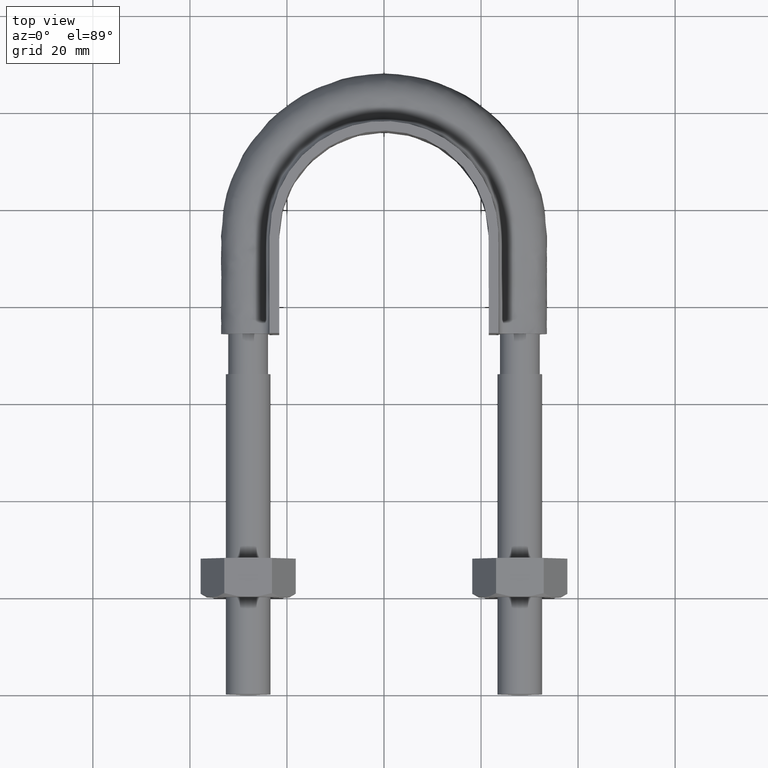
[diagram: clean part render]
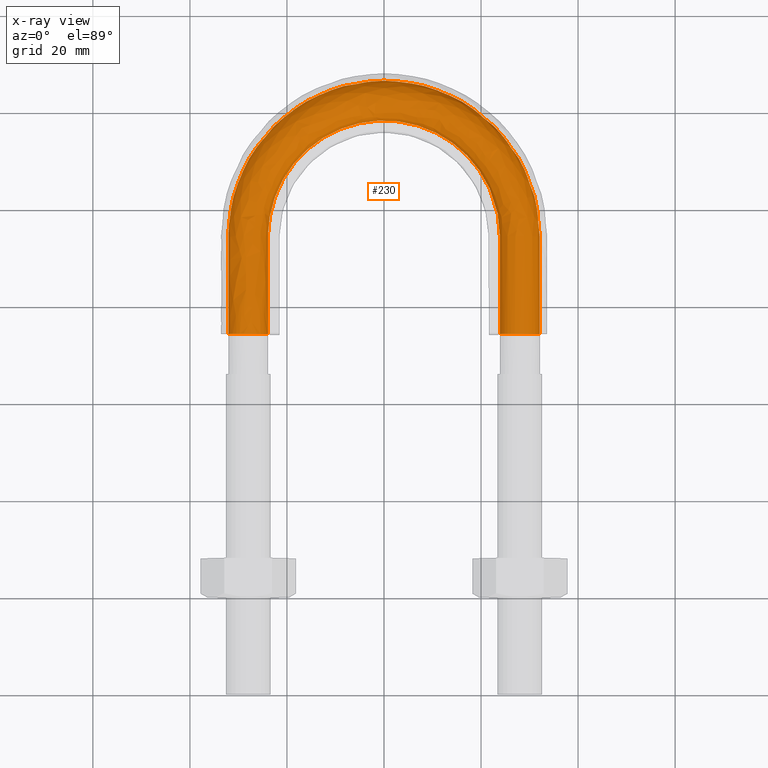
[diagram: x-ray — body ghosted, one internal face saturated and labeled with its STEP entity id]
A machine part, top view, then the same camera in x-ray: the body is ghosted and one INTERNAL B-rep face — a face not visible from any outside direction — is saturated and labeled: STEP entity #230.
In plain terms, the highlighted face is a freeform B-spline surface patch.
Its self-contained STEP definition (entity closure, byte-faithful):
#230 = ADVANCED_FACE( '', ( #322, #323 ), #324, .T. );
#322 = FACE_OUTER_BOUND( '', #1170, .T. );
#323 = FACE_OUTER_BOUND( '', #1171, .T. );
#324 = B_SPLINE_SURFACE_WITH_KNOTS( '', 3, 3, ( ( #1172, #1173, #1174, #1175, #1176, #1177, #1178, #1179, #1180, #1181, #1182, #1183, #1184, #1185, #1186 ), ( #1187, #1188, #1189, #1190, #1191, #1192, #1193, #1194, #1195, #1196, #1197, #1198, #1199, #1200, #1201 ), ( #1202, #1203, #1204, #1205, #1206, #1207, #1208, #1209, #1210, #1211, #1212, #1213, #1214, #1215, #1216 ), ( #1217, #1218, #1219, #1220, #1221, #1222, #1223, #1224, #1225, #1226, #1227, #1228, #1229, #1230, #1231 ), ( #1232, #1233, #1234, #1235, #1236, #1237, #1238, #1239, #1240, #1241, #1242, #1243, #1244, #1245, #1246 ), ( #1247, #1248, #1249, #1250, #1251, #1252, #1253, #1254, #1255, #1256, #1257, #1258, #1259, #1260, #1261 ), ( #1262, #1263, #1264, #1265, #1266, #1267, #1268, #1269, #1270, #1271, #1272, #1273, #1274, #1275, #1276 ), ( #1277, #1278, #1279, #1280, #1281, #1282, #1283, #1284, #1285, #1286, #1287, #1288, #1289, #1290, #1291 ), ( #1292, #1293, #1294, #1295, #1296, #1297, #1298, #1299, #1300, #1301, #1302, #1303, #1304, #1305, #1306 ), ( #1307, #1308, #1309, #1310, #1311, #1312, #1313, #1314, #1315, #1316, #1317, #1318, #1319, #1320, #1321 ) ), .UNSPECIFIED., .T., .F., .F., ( 2, 1, 1, 1, 1, 1, 1, 1, 1, 1, 1, 2 ), ( 4, 3, 1, 1, 1, 1, 1, 3, 4 ), ( -0.285714285714286, -0.142857142857143, 0.000000000000000, 0.142857142857143, 0.285714285714286, 0.428571428571429, 0.571428571428571, 0.714285714285714, 0.857142857142857, 1.00000000000000, 1.14285714285714, 1.28571428571429 ), ( 0.000000000000000, 1.00000000000000, 2.00000000000000, 3.00000000000000, 4.00000000000000, 5.00000000000000, 6.00000000000000, 7.00000000000000, 8.00000000000000 ), .UNSPECIFIED. );
#1170 = EDGE_LOOP( '', ( #1548, #1549, #1550, #1551, #1552, #1553, #1554 ) );
#1171 = EDGE_LOOP( '', ( #1555, #1556, #1557, #1558, #1559, #1560, #1561 ) );
#1172 = CARTESIAN_POINT( '', ( 25.0768231851220, 71.3000000000000, -3.66554778583225 ) );
#1173 = CARTESIAN_POINT( '', ( 25.0768231851220, 79.0000000000000, -3.66554778583225 ) );
#1174 = CARTESIAN_POINT( '', ( 25.0768231851220, 86.7000000000000, -3.66554778583225 ) );
#1175 = CARTESIAN_POINT( '', ( 25.0768231851220, 94.4000000000000, -3.66554778583225 ) );
#1176 = CARTESIAN_POINT( '', ( 25.0768231851220, 98.7626384006497, -3.66554778583225 ) );
#1177 = CARTESIAN_POINT( '', ( 22.7323518094255, 107.530224984080, -3.66554778583225 ) );
#1178 = CARTESIAN_POINT( '', ( 13.1245294364851, 117.130724510113, -3.66554778583225 ) );
#1179 = CARTESIAN_POINT( '', ( 2.47495200347735E-014, 120.649872522627, -3.66554778583225 ) );
#1180 = CARTESIAN_POINT( '', ( -13.1245294364851, 117.130724510113, -3.66554778583225 ) );
#1181 = CARTESIAN_POINT( '', ( -22.7323518094255, 107.530224984080, -3.66554778583225 ) );
#1182 = CARTESIAN_POINT( '', ( -25.0768231851219, 98.7626384006496, -3.66554778583225 ) );
#1183 = CARTESIAN_POINT( '', ( -25.0768231851219, 94.4000000000000, -3.66554778583225 ) );
#1184 = CARTESIAN_POINT( '', ( -25.0768231851219, 86.7000000000000, -3.66554778583225 ) );
#1185 = CARTESIAN_POINT( '', ( -25.0768231851219, 79.0000000000000, -3.66554778583225 ) );
#1186 = CARTESIAN_POINT( '', ( -25.0768231851219, 71.3000000000000, -3.66554778583225 ) );
#1187 = CARTESIAN_POINT( '', ( 23.3115884074390, 71.3000000000000, 0.000000000000000 ) );
#1188 = CARTESIAN_POINT( '', ( 23.3115884074390, 79.0000000000000, 0.000000000000000 ) );
#1189 = CARTESIAN_POINT( '', ( 23.3115884074390, 86.7000000000000, 0.000000000000000 ) );
#1190 = CARTESIAN_POINT( '', ( 23.3115884074390, 94.4000000000000, 0.000000000000000 ) );
#1191 = CARTESIAN_POINT( '', ( 23.3115884074390, 98.4473095785620, 0.000000000000000 ) );
#1192 = CARTESIAN_POINT( '', ( 21.1321515888358, 106.609788357455, 0.000000000000000 ) );
#1193 = CARTESIAN_POINT( '', ( 12.2006534083703, 115.529541603383, 0.000000000000000 ) );
#1194 = CARTESIAN_POINT( '', ( 2.97274737420537E-014, 118.802611809467, 0.000000000000000 ) );
#1195 = CARTESIAN_POINT( '', ( -12.2006534083703, 115.529541603383, 0.000000000000000 ) );
#1196 = CARTESIAN_POINT( '', ( -21.1321515888358, 106.609788357455, 0.000000000000000 ) );
#1197 = CARTESIAN_POINT( '', ( -23.3115884074390, 98.4473095785620, 0.000000000000000 ) );
#1198 = CARTESIAN_POINT( '', ( -23.3115884074390, 94.4000000000000, 0.000000000000000 ) );
#1199 = CARTESIAN_POINT( '', ( -23.3115884074390, 86.7000000000000, 0.000000000000000 ) );
#1200 = CARTESIAN_POINT( '', ( -23.3115884074390, 79.0000000000000, 0.000000000000000 ) );
#1201 = CARTESIAN_POINT( '', ( -23.3115884074390, 71.3000000000000, 0.000000000000000 ) );
#1202 = CARTESIAN_POINT( '', ( 25.0768231851220, 71.3000000000000, 3.66554778583225 ) );
#1203 = CARTESIAN_POINT( '', ( 25.0768231851220, 79.0000000000000, 3.66554778583225 ) );
#1204 = CARTESIAN_POINT( '', ( 25.0768231851220, 86.7000000000000, 3.66554778583225 ) );
#1205 = CARTESIAN_POINT( '', ( 25.0768231851220, 94.4000000000000, 3.66554778583225 ) );
#1206 = CARTESIAN_POINT( '', ( 25.0768231851220, 98.7626384006496, 3.66554778583225 ) );
#1207 = CARTESIAN_POINT( '', ( 22.7323518094255, 107.530224984080, 3.66554778583225 ) );
#1208 = CARTESIAN_POINT( '', ( 13.1245294364851, 117.130724510113, 3.66554778583225 ) );
#1209 = CARTESIAN_POINT( '', ( 3.21220948076749E-014, 120.649872522627, 3.66554778583225 ) );
#1210 = CARTESIAN_POINT( '', ( -13.1245294364851, 117.130724510113, 3.66554778583225 ) );
#1211 = CARTESIAN_POINT( '', ( -22.7323518094255, 107.530224984080, 3.66554778583225 ) );
#1212 = CARTESIAN_POINT( '', ( -25.0768231851219, 98.7626384006497, 3.66554778583225 ) );
#1213 = CARTESIAN_POINT( '', ( -25.0768231851219, 94.4000000000000, 3.66554778583225 ) );
#1214 = CARTESIAN_POINT( '', ( -25.0768231851219, 86.7000000000000, 3.66554778583225 ) );
#1215 = CARTESIAN_POINT( '', ( -25.0768231851219, 79.0000000000000, 3.66554778583225 ) );
#1216 = CARTESIAN_POINT( '', ( -25.0768231851219, 71.3000000000000, 3.66554778583225 ) );
#1217 = CARTESIAN_POINT( '', ( 29.0432697263483, 71.3000000000000, 4.57086332538454 ) );
#1218 = CARTESIAN_POINT( '', ( 29.0432697263483, 79.0000000000000, 4.57086332538454 ) );
#1219 = CARTESIAN_POINT( '', ( 29.0432697263483, 86.7000000000000, 4.57086332538454 ) );
#1220 = CARTESIAN_POINT( '', ( 29.0432697263483, 94.4000000000000, 4.57086332538454 ) );
#1221 = CARTESIAN_POINT( '', ( 29.0432697263483, 99.4711758323449, 4.57086332538453 ) );
#1222 = CARTESIAN_POINT( '', ( 26.3279690669548, 109.598427310621, 4.57086332538453 ) );
#1223 = CARTESIAN_POINT( '', ( 15.2004600280225, 120.728549843355, 4.57086332538454 ) );
#1224 = CARTESIAN_POINT( '', ( 2.91609522130421E-014, 124.800629667845, 4.57086332538454 ) );
#1225 = CARTESIAN_POINT( '', ( -15.2004600280225, 120.728549843355, 4.57086332538454 ) );
#1226 = CARTESIAN_POINT( '', ( -26.3279690669548, 109.598427310621, 4.57086332538453 ) );
#1227 = CARTESIAN_POINT( '', ( -29.0432697263483, 99.4711758323449, 4.57086332538454 ) );
#1228 = CARTESIAN_POINT( '', ( -29.0432697263483, 94.4000000000000, 4.57086332538454 ) );
#1229 = CARTESIAN_POINT( '', ( -29.0432697263483, 86.7000000000000, 4.57086332538454 ) );
#1230 = CARTESIAN_POINT( '', ( -29.0432697263483, 79.0000000000000, 4.57086332538454 ) );
#1231 = CARTESIAN_POINT( '', ( -29.0432697263483, 71.3000000000000, 4.57086332538454 ) );
#1232 = CARTESIAN_POINT( '', ( 32.2241128848103, 71.3000000000000, 2.03422555230246 ) );
#1233 = CARTESIAN_POINT( '', ( 32.2241128848103, 79.0000000000000, 2.03422555230246 ) );
#1234 = CARTESIAN_POINT( '', ( 32.2241128848103, 86.7000000000000, 2.03422555230246 ) );
#1235 = CARTESIAN_POINT( '', ( 32.2241128848103, 94.4000000000000, 2.03422555230246 ) );
#1236 = CARTESIAN_POINT( '', ( 32.2241128848103, 100.039378736051, 2.03422555230246 ) );
#1237 = CARTESIAN_POINT( '', ( 29.2114302292787, 111.256996801553, 2.03422555230246 ) );
#1238 = CARTESIAN_POINT( '', ( 16.8652271062880, 123.613781744917, 2.03422555230246 ) );
#1239 = CARTESIAN_POINT( '', ( 2.26296867545444E-014, 128.129278454757, 2.03422555230246 ) );
#1240 = CARTESIAN_POINT( '', ( -16.8652271062880, 123.613781744917, 2.03422555230247 ) );
#1241 = CARTESIAN_POINT( '', ( -29.2114302292786, 111.256996801553, 2.03422555230246 ) );
#1242 = CARTESIAN_POINT( '', ( -32.2241128848102, 100.039378736052, 2.03422555230246 ) );
#1243 = CARTESIAN_POINT( '', ( -32.2241128848102, 94.4000000000000, 2.03422555230246 ) );
#1244 = CARTESIAN_POINT( '', ( -32.2241128848102, 86.7000000000000, 2.03422555230246 ) );
#1245 = CARTESIAN_POINT( '', ( -32.2241128848102, 79.0000000000000, 2.03422555230246 ) );
#1246 = CARTESIAN_POINT( '', ( -32.2241128848102, 71.3000000000000, 2.03422555230246 ) );
#1247 = CARTESIAN_POINT( '', ( 32.2241128848103, 71.3000000000000, -2.03422555230246 ) );
#1248 = CARTESIAN_POINT( '', ( 32.2241128848103, 79.0000000000000, -2.03422555230246 ) );
#1249 = CARTESIAN_POINT( '', ( 32.2241128848103, 86.7000000000000, -2.03422555230246 ) );
#1250 = CARTESIAN_POINT( '', ( 32.2241128848103, 94.4000000000000, -2.03422555230246 ) );
#1251 = CARTESIAN_POINT( '', ( 32.2241128848103, 100.039378736051, -2.03422555230246 ) );
#1252 = CARTESIAN_POINT( '', ( 29.2114302292787, 111.256996801553, -2.03422555230246 ) );
#1253 = CARTESIAN_POINT( '', ( 16.8652271062880, 123.613781744917, -2.03422555230246 ) );
#1254 = CARTESIAN_POINT( '', ( 1.82928780646024E-014, 128.129278454757, -2.03422555230246 ) );
#1255 = CARTESIAN_POINT( '', ( -16.8652271062880, 123.613781744917, -2.03422555230246 ) );
#1256 = CARTESIAN_POINT( '', ( -29.2114302292787, 111.256996801553, -2.03422555230246 ) );
#1257 = CARTESIAN_POINT( '', ( -32.2241128848102, 100.039378736051, -2.03422555230246 ) );
#1258 = CARTESIAN_POINT( '', ( -32.2241128848102, 94.4000000000000, -2.03422555230246 ) );
#1259 = CARTESIAN_POINT( '', ( -32.2241128848102, 86.7000000000000, -2.03422555230246 ) );
#1260 = CARTESIAN_POINT( '', ( -32.2241128848102, 79.0000000000000, -2.03422555230246 ) );
#1261 = CARTESIAN_POINT( '', ( -32.2241128848102, 71.3000000000000, -2.03422555230246 ) );
#1262 = CARTESIAN_POINT( '', ( 29.0432697263483, 71.3000000000000, -4.57086332538454 ) );
#1263 = CARTESIAN_POINT( '', ( 29.0432697263483, 79.0000000000000, -4.57086332538454 ) );
#1264 = CARTESIAN_POINT( '', ( 29.0432697263483, 86.7000000000000, -4.57086332538454 ) );
#1265 = CARTESIAN_POINT( '', ( 29.0432697263483, 94.4000000000000, -4.57086332538454 ) );
#1266 = CARTESIAN_POINT( '', ( 29.0432697263483, 99.4711758323449, -4.57086332538454 ) );
#1267 = CARTESIAN_POINT( '', ( 26.3279690669548, 109.598427310621, -4.57086332538454 ) );
#1268 = CARTESIAN_POINT( '', ( 15.2004600280225, 120.728549843355, -4.57086332538454 ) );
#1269 = CARTESIAN_POINT( '', ( 1.87526113571812E-014, 124.800629667845, -4.57086332538454 ) );
#1270 = CARTESIAN_POINT( '', ( -15.2004600280225, 120.728549843355, -4.57086332538454 ) );
#1271 = CARTESIAN_POINT( '', ( -26.3279690669548, 109.598427310621, -4.57086332538454 ) );
#1272 = CARTESIAN_POINT( '', ( -29.0432697263483, 99.4711758323449, -4.57086332538454 ) );
#1273 = CARTESIAN_POINT( '', ( -29.0432697263483, 94.4000000000000, -4.57086332538454 ) );
#1274 = CARTESIAN_POINT( '', ( -29.0432697263483, 86.7000000000000, -4.57086332538454 ) );
#1275 = CARTESIAN_POINT( '', ( -29.0432697263483, 79.0000000000000, -4.57086332538454 ) );
#1276 = CARTESIAN_POINT( '', ( -29.0432697263483, 71.3000000000000, -4.57086332538454 ) );
#1277 = CARTESIAN_POINT( '', ( 25.0768231851220, 71.3000000000000, -3.66554778583225 ) );
#1278 = CARTESIAN_POINT( '', ( 25.0768231851220, 79.0000000000000, -3.66554778583225 ) );
#1279 = CARTESIAN_POINT( '', ( 25.0768231851220, 86.7000000000000, -3.66554778583225 ) );
#1280 = CARTESIAN_POINT( '', ( 25.0768231851220, 94.4000000000000, -3.66554778583225 ) );
#1281 = CARTESIAN_POINT( '', ( 25.0768231851220, 98.7626384006497, -3.66554778583225 ) );
#1282 = CARTESIAN_POINT( '', ( 22.7323518094255, 107.530224984080, -3.66554778583225 ) );
#1283 = CARTESIAN_POINT( '', ( 13.1245294364851, 117.130724510113, -3.66554778583225 ) );
#1284 = CARTESIAN_POINT( '', ( 2.47495200347735E-014, 120.649872522627, -3.66554778583225 ) );
#1285 = CARTESIAN_POINT( '', ( -13.1245294364851, 117.130724510113, -3.66554778583225 ) );
#1286 = CARTESIAN_POINT( '', ( -22.7323518094255, 107.530224984080, -3.66554778583225 ) );
#1287 = CARTESIAN_POINT( '', ( -25.0768231851219, 98.7626384006496, -3.66554778583225 ) );
#1288 = CARTESIAN_POINT( '', ( -25.0768231851219, 94.4000000000000, -3.66554778583225 ) );
#1289 = CARTESIAN_POINT( '', ( -25.0768231851219, 86.7000000000000, -3.66554778583225 ) );
#1290 = CARTESIAN_POINT( '', ( -25.0768231851219, 79.0000000000000, -3.66554778583225 ) );
#1291 = CARTESIAN_POINT( '', ( -25.0768231851219, 71.3000000000000, -3.66554778583225 ) );
#1292 = CARTESIAN_POINT( '', ( 23.3115884074390, 71.3000000000000, 0.000000000000000 ) );
#1293 = CARTESIAN_POINT( '', ( 23.3115884074390, 79.0000000000000, 0.000000000000000 ) );
#1294 = CARTESIAN_POINT( '', ( 23.3115884074390, 86.7000000000000, 0.000000000000000 ) );
#1295 = CARTESIAN_POINT( '', ( 23.3115884074390, 94.4000000000000, 0.000000000000000 ) );
#1296 = CARTESIAN_POINT( '', ( 23.3115884074390, 98.4473095785620, 0.000000000000000 ) );
#1297 = CARTESIAN_POINT( '', ( 21.1321515888358, 106.609788357455, 0.000000000000000 ) );
#1298 = CARTESIAN_POINT( '', ( 12.2006534083703, 115.529541603383, 0.000000000000000 ) );
#1299 = CARTESIAN_POINT( '', ( 2.97274737420537E-014, 118.802611809467, 0.000000000000000 ) );
#1300 = CARTESIAN_POINT( '', ( -12.2006534083703, 115.529541603383, 0.000000000000000 ) );
#1301 = CARTESIAN_POINT( '', ( -21.1321515888358, 106.609788357455, 0.000000000000000 ) );
#1302 = CARTESIAN_POINT( '', ( -23.3115884074390, 98.4473095785620, 0.000000000000000 ) );
#1303 = CARTESIAN_POINT( '', ( -23.3115884074390, 94.4000000000000, 0.000000000000000 ) );
#1304 = CARTESIAN_POINT( '', ( -23.3115884074390, 86.7000000000000, 0.000000000000000 ) );
#1305 = CARTESIAN_POINT( '', ( -23.3115884074390, 79.0000000000000, 0.000000000000000 ) );
#1306 = CARTESIAN_POINT( '', ( -23.3115884074390, 71.3000000000000, 0.000000000000000 ) );
#1307 = CARTESIAN_POINT( '', ( 25.0768231851220, 71.3000000000000, 3.66554778583225 ) );
#1308 = CARTESIAN_POINT( '', ( 25.0768231851220, 79.0000000000000, 3.66554778583225 ) );
#1309 = CARTESIAN_POINT( '', ( 25.0768231851220, 86.7000000000000, 3.66554778583225 ) );
#1310 = CARTESIAN_POINT( '', ( 25.0768231851220, 94.4000000000000, 3.66554778583225 ) );
#1311 = CARTESIAN_POINT( '', ( 25.0768231851220, 98.7626384006496, 3.66554778583225 ) );
#1312 = CARTESIAN_POINT( '', ( 22.7323518094255, 107.530224984080, 3.66554778583225 ) );
#1313 = CARTESIAN_POINT( '', ( 13.1245294364851, 117.130724510113, 3.66554778583225 ) );
#1314 = CARTESIAN_POINT( '', ( 3.21220948076749E-014, 120.649872522627, 3.66554778583225 ) );
#1315 = CARTESIAN_POINT( '', ( -13.1245294364851, 117.130724510113, 3.66554778583225 ) );
#1316 = CARTESIAN_POINT( '', ( -22.7323518094255, 107.530224984080, 3.66554778583225 ) );
#1317 = CARTESIAN_POINT( '', ( -25.0768231851219, 98.7626384006497, 3.66554778583225 ) );
#1318 = CARTESIAN_POINT( '', ( -25.0768231851219, 94.4000000000000, 3.66554778583225 ) );
#1319 = CARTESIAN_POINT( '', ( -25.0768231851219, 86.7000000000000, 3.66554778583225 ) );
#1320 = CARTESIAN_POINT( '', ( -25.0768231851219, 79.0000000000000, 3.66554778583225 ) );
#1321 = CARTESIAN_POINT( '', ( -25.0768231851219, 71.3000000000000, 3.66554778583225 ) );
#1548 = ORIENTED_EDGE( '', *, *, #2027, .T. );
#1549 = ORIENTED_EDGE( '', *, *, #2026, .T. );
#1550 = ORIENTED_EDGE( '', *, *, #2028, .T. );
#1551 = ORIENTED_EDGE( '', *, *, #2029, .T. );
#1552 = ORIENTED_EDGE( '', *, *, #2030, .T. );
#1553 = ORIENTED_EDGE( '', *, *, #2031, .T. );
#1554 = ORIENTED_EDGE( '', *, *, #2032, .T. );
#1555 = ORIENTED_EDGE( '', *, *, #2033, .T. );
#1556 = ORIENTED_EDGE( '', *, *, #2034, .F. );
#1557 = ORIENTED_EDGE( '', *, *, #2035, .F. );
#1558 = ORIENTED_EDGE( '', *, *, #2036, .F. );
#1559 = ORIENTED_EDGE( '', *, *, #2037, .F. );
#1560 = ORIENTED_EDGE( '', *, *, #2038, .F. );
#1561 = ORIENTED_EDGE( '', *, *, #2039, .F. );
#2026 = EDGE_CURVE( '', #2190, #2188, #2197, .T. );
#2027 = EDGE_CURVE( '', #2179, #2190, #2198, .T. );
#2028 = EDGE_CURVE( '', #2188, #2186, #2199, .T. );
#2029 = EDGE_CURVE( '', #2186, #2184, #2200, .T. );
#2030 = EDGE_CURVE( '', #2184, #2182, #2201, .T. );
#2031 = EDGE_CURVE( '', #2182, #2180, #2202, .T. );
#2032 = EDGE_CURVE( '', #2180, #2179, #2203, .T. );
#2033 = EDGE_CURVE( '', #2204, #2205, #2206, .T. );
#2034 = EDGE_CURVE( '', #2207, #2205, #2208, .T. );
#2035 = EDGE_CURVE( '', #2209, #2207, #2210, .T. );
#2036 = EDGE_CURVE( '', #2211, #2209, #2212, .T. );
#2037 = EDGE_CURVE( '', #2213, #2211, #2214, .T. );
#2038 = EDGE_CURVE( '', #2215, #2213, #2216, .T. );
#2039 = EDGE_CURVE( '', #2204, #2215, #2217, .T. );
#2179 = VERTEX_POINT( '', #2630 );
#2180 = VERTEX_POINT( '', #2631 );
#2182 = VERTEX_POINT( '', #2633 );
#2184 = VERTEX_POINT( '', #2635 );
#2186 = VERTEX_POINT( '', #2637 );
#2188 = VERTEX_POINT( '', #2639 );
#2190 = VERTEX_POINT( '', #2641 );
#2197 = B_SPLINE_CURVE_WITH_KNOTS( '', 3, ( #2648, #2649, #2650, #2651 ), .UNSPECIFIED., .F., .F., ( 4, 4 ), ( 0.00365969768494560, 0.00731437302338649 ), .UNSPECIFIED. );
#2198 = B_SPLINE_CURVE_WITH_KNOTS( '', 3, ( #2652, #2653, #2654, #2655 ), .UNSPECIFIED., .F., .F., ( 4, 4 ), ( 5.20417042793042E-017, 0.00365969768494560 ), .UNSPECIFIED. );
#2199 = B_SPLINE_CURVE_WITH_KNOTS( '', 3, ( #2656, #2657, #2658, #2659 ), .UNSPECIFIED., .F., .F., ( 4, 4 ), ( 0.00731437302338649, 0.0109748044148549 ), .UNSPECIFIED. );
#2200 = B_SPLINE_CURVE_WITH_KNOTS( '', 3, ( #2660, #2661, #2662, #2663 ), .UNSPECIFIED., .F., .F., ( 4, 4 ), ( 0.0109748044148549, 0.0146317467085366 ), .UNSPECIFIED. );
#2201 = B_SPLINE_CURVE_WITH_KNOTS( '', 3, ( #2664, #2665, #2666, #2667 ), .UNSPECIFIED., .F., .F., ( 4, 4 ), ( 0.0146317467085366, 0.0182856759681277 ), .UNSPECIFIED. );
#2202 = B_SPLINE_CURVE_WITH_KNOTS( '', 3, ( #2668, #2669, #2670, #2671 ), .UNSPECIFIED., .F., .F., ( 4, 4 ), ( 0.0182856759681277, 0.0219456464543594 ), .UNSPECIFIED. );
#2203 = B_SPLINE_CURVE_WITH_KNOTS( '', 3, ( #2672, #2673, #2674, #2675 ), .UNSPECIFIED., .F., .F., ( 4, 4 ), ( 0.0219456464543594, 0.0255944202292314 ), .UNSPECIFIED. );
#2204 = VERTEX_POINT( '', #2676 );
#2205 = VERTEX_POINT( '', #2677 );
#2206 = B_SPLINE_CURVE_WITH_KNOTS( '', 3, ( #2678, #2679, #2680, #2681 ), .UNSPECIFIED., .F., .F., ( 4, 4 ), ( 2.76869048186654E-017, 0.00365969768494564 ), .UNSPECIFIED. );
#2207 = VERTEX_POINT( '', #2682 );
#2208 = B_SPLINE_CURVE_WITH_KNOTS( '', 3, ( #2683, #2684, #2685, #2686 ), .UNSPECIFIED., .F., .F., ( 4, 4 ), ( -0.285714285714286, -0.142857142857143 ), .UNSPECIFIED. );
#2209 = VERTEX_POINT( '', #2687 );
#2210 = B_SPLINE_CURVE_WITH_KNOTS( '', 3, ( #2688, #2689, #2690, #2691 ), .UNSPECIFIED., .F., .F., ( 4, 4 ), ( -0.428571428571429, -0.285714285714286 ), .UNSPECIFIED. );
#2211 = VERTEX_POINT( '', #2692 );
#2212 = B_SPLINE_CURVE_WITH_KNOTS( '', 3, ( #2693, #2694, #2695, #2696 ), .UNSPECIFIED., .F., .F., ( 4, 4 ), ( -0.571428571428571, -0.428571428571429 ), .UNSPECIFIED. );
#2213 = VERTEX_POINT( '', #2697 );
#2214 = B_SPLINE_CURVE_WITH_KNOTS( '', 3, ( #2698, #2699, #2700, #2701 ), .UNSPECIFIED., .F., .F., ( 4, 4 ), ( -0.714285714285714, -0.571428571428571 ), .UNSPECIFIED. );
#2215 = VERTEX_POINT( '', #2702 );
#2216 = B_SPLINE_CURVE_WITH_KNOTS( '', 3, ( #2703, #2704, #2705, #2706 ), .UNSPECIFIED., .F., .F., ( 4, 4 ), ( -0.857142857142857, -0.714285714285714 ), .UNSPECIFIED. );
#2217 = B_SPLINE_CURVE_WITH_KNOTS( '', 3, ( #2707, #2708, #2709, #2710 ), .UNSPECIFIED., .F., .F., ( 4, 4 ), ( -1.00000000000000, -0.857142857142857 ), .UNSPECIFIED. );
#2630 = CARTESIAN_POINT( '', ( -23.9000000000000, 74.3000000000000, 5.34345494379736E-014 ) );
#2631 = CARTESIAN_POINT( '', ( -25.4436918124004, 74.3000000000000, 3.20550907813583 ) );
#2633 = CARTESIAN_POINT( '', ( -28.9123358292367, 74.3000000000000, 3.99720443994186 ) );
#2635 = CARTESIAN_POINT( '', ( -31.6939723584001, 74.3000000000000, 1.77892333038169 ) );
#2637 = CARTESIAN_POINT( '', ( -31.6939723583899, 74.3000000000000, -1.77892333040284 ) );
#2639 = CARTESIAN_POINT( '', ( -28.9123358292208, 74.3000000000000, -3.99720443994548 ) );
#2641 = CARTESIAN_POINT( '', ( -25.4436918123791, 74.3000000000000, -3.20550907811886 ) );
#2648 = CARTESIAN_POINT( '', ( -25.4436918123791, 74.3000000000000, -3.20550907811886 ) );
#2649 = CARTESIAN_POINT( '', ( -26.3989720321973, 74.3000000000000, -3.96731963234966 ) );
#2650 = CARTESIAN_POINT( '', ( -27.7211208792728, 74.3000000000000, -4.26909147886711 ) );
#2651 = CARTESIAN_POINT( '', ( -28.9123358292209, 74.3000000000000, -3.99720443994548 ) );
#2652 = CARTESIAN_POINT( '', ( -23.9000000000000, 74.3000000000000, 3.61039323437673E-014 ) );
#2653 = CARTESIAN_POINT( '', ( -23.9000000000000, 74.3000000000000, -1.22184926194403 ) );
#2654 = CARTESIAN_POINT( '', ( -24.4884115925609, 74.3000000000000, -2.44369852388810 ) );
#2655 = CARTESIAN_POINT( '', ( -25.4436918123791, 74.3000000000000, -3.20550907811886 ) );
#2656 = CARTESIAN_POINT( '', ( -28.9123358292126, 74.3000000000000, -3.99720443994704 ) );
#2657 = CARTESIAN_POINT( '', ( -30.1035507791580, 74.3000000000000, -3.72531740102824 ) );
#2658 = CARTESIAN_POINT( '', ( -31.1638318319762, 74.3000000000000, -2.87977147667384 ) );
#2659 = CARTESIAN_POINT( '', ( -31.6939723583899, 74.3000000000000, -1.77892333040284 ) );
#2660 = CARTESIAN_POINT( '', ( -31.6939723583898, 74.3000000000000, -1.77892333040295 ) );
#2661 = CARTESIAN_POINT( '', ( -32.2241128848102, 74.3000000000000, -0.678075184118115 ) );
#2662 = CARTESIAN_POINT( '', ( -32.2241128848136, 74.3000000000000, 0.678075184093617 ) );
#2663 = CARTESIAN_POINT( '', ( -31.6939723584001, 74.3000000000000, 1.77892333038168 ) );
#2664 = CARTESIAN_POINT( '', ( -31.6939723584024, 74.3000000000000, 1.77892333037630 ) );
#2665 = CARTESIAN_POINT( '', ( -31.1638318319945, 74.3000000000000, 2.87977147665625 ) );
#2666 = CARTESIAN_POINT( '', ( -30.1035507791784, 74.3000000000000, 3.72531740101633 ) );
#2667 = CARTESIAN_POINT( '', ( -28.9123358292367, 74.3000000000000, 3.99720443994186 ) );
#2668 = CARTESIAN_POINT( '', ( -28.9123358292462, 74.3000000000000, 3.99720443993933 ) );
#2669 = CARTESIAN_POINT( '', ( -27.7211208792983, 74.3000000000000, 4.26909147886889 ) );
#2670 = CARTESIAN_POINT( '', ( -26.3989720322212, 74.3000000000000, 3.96731963235752 ) );
#2671 = CARTESIAN_POINT( '', ( -25.4436918124004, 74.3000000000000, 3.20550907813583 ) );
#2672 = CARTESIAN_POINT( '', ( -25.4436918124004, 74.3000000000000, 3.20550907813584 ) );
#2673 = CARTESIAN_POINT( '', ( -24.4884115925697, 74.3000000000000, 2.44369852390625 ) );
#2674 = CARTESIAN_POINT( '', ( -23.9000000000000, 74.3000000000000, 1.22184926195313 ) );
#2675 = CARTESIAN_POINT( '', ( -23.9000000000000, 74.3000000000000, 4.33680868994202E-016 ) );
#2676 = CARTESIAN_POINT( '', ( 23.9000000000000, 74.3000000000000, -2.72765919113833E-014 ) );
#2677 = CARTESIAN_POINT( '', ( 25.4436918123792, 74.3000000000000, 3.20550907811889 ) );
#2678 = CARTESIAN_POINT( '', ( 23.9000000000000, 74.3000000000000, 4.33680868994202E-016 ) );
#2679 = CARTESIAN_POINT( '', ( 23.9000000000000, 74.3000000000000, 1.22184926194406 ) );
#2680 = CARTESIAN_POINT( '', ( 24.4884115925610, 74.3000000000000, 2.44369852388812 ) );
#2681 = CARTESIAN_POINT( '', ( 25.4436918123792, 74.3000000000000, 3.20550907811888 ) );
#2682 = CARTESIAN_POINT( '', ( 28.9123358292209, 74.3000000000000, 3.99720443994547 ) );
#2683 = CARTESIAN_POINT( '', ( 28.9123358292209, 74.3000000000000, 3.99720443994548 ) );
#2684 = CARTESIAN_POINT( '', ( 27.7211208792728, 74.3000000000000, 4.26909147886711 ) );
#2685 = CARTESIAN_POINT( '', ( 26.3989720321974, 74.3000000000000, 3.96731963234967 ) );
#2686 = CARTESIAN_POINT( '', ( 25.4436918123792, 74.3000000000000, 3.20550907811889 ) );
#2687 = CARTESIAN_POINT( '', ( 31.6939723583998, 74.3000000000000, 1.77892333038222 ) );
#2688 = CARTESIAN_POINT( '', ( 31.6939723583998, 74.3000000000000, 1.77892333038221 ) );
#2689 = CARTESIAN_POINT( '', ( 31.1638318319895, 74.3000000000000, 2.87977147666326 ) );
#2690 = CARTESIAN_POINT( '', ( 30.1035507791689, 74.3000000000000, 3.72531740102386 ) );
#2691 = CARTESIAN_POINT( '', ( 28.9123358292209, 74.3000000000000, 3.99720443994547 ) );
#2692 = CARTESIAN_POINT( '', ( 31.6939723583999, 74.3000000000000, -1.77892333038213 ) );
#2693 = CARTESIAN_POINT( '', ( 31.6939723583999, 74.3000000000000, -1.77892333038205 ) );
#2694 = CARTESIAN_POINT( '', ( 32.2241128848103, 74.3000000000000, -0.678075184100816 ) );
#2695 = CARTESIAN_POINT( '', ( 32.2241128848103, 74.3000000000000, 0.678075184100960 ) );
#2696 = CARTESIAN_POINT( '', ( 31.6939723583998, 74.3000000000000, 1.77892333038221 ) );
#2697 = CARTESIAN_POINT( '', ( 28.9123358292214, 74.3000000000000, -3.99720443994536 ) );
#2698 = CARTESIAN_POINT( '', ( 28.9123358292214, 74.3000000000000, -3.99720443994537 ) );
#2699 = CARTESIAN_POINT( '', ( 30.1035507791692, 74.3000000000000, -3.72531740102363 ) );
#2700 = CARTESIAN_POINT( '', ( 31.1638318319896, 74.3000000000000, -2.87977147666307 ) );
#2701 = CARTESIAN_POINT( '', ( 31.6939723583999, 74.3000000000000, -1.77892333038213 ) );
#2702 = CARTESIAN_POINT( '', ( 25.4436918123817, 74.3000000000000, -3.20550907812087 ) );
#2703 = CARTESIAN_POINT( '', ( 25.4436918123818, 74.3000000000000, -3.20550907812100 ) );
#2704 = CARTESIAN_POINT( '', ( 26.3989720321999, 74.3000000000000, -3.96731963235033 ) );
#2705 = CARTESIAN_POINT( '', ( 27.7211208792743, 74.3000000000000, -4.26909147886696 ) );
#2706 = CARTESIAN_POINT( '', ( 28.9123358292214, 74.3000000000000, -3.99720443994536 ) );
#2707 = CARTESIAN_POINT( '', ( 23.9000000000000, 74.3000000000000, -1.12832920090566E-012 ) );
#2708 = CARTESIAN_POINT( '', ( 23.9000000000003, 74.3000000000000, -1.22184926194565 ) );
#2709 = CARTESIAN_POINT( '', ( 24.4884115925620, 74.3000000000000, -2.44369852389025 ) );
#2710 = CARTESIAN_POINT( '', ( 25.4436918123817, 74.3000000000000, -3.20550907812087 ) );